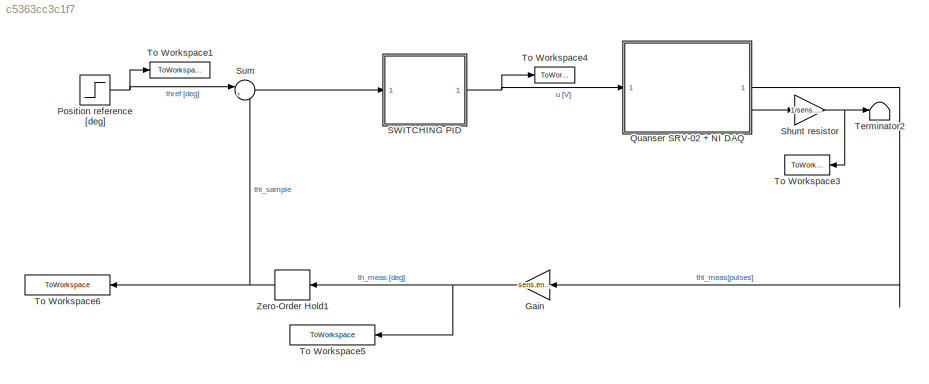
MODEL slx_c5363cc3c1f7
KIND model
CONFIG AbsTol = auto
CONFIG EnableMultiTasking = off
CONFIG FixedStep = auto
CONFIG MaxStep = auto
CONFIG MinStep = auto
CONFIG RelTol = 1e-3
CONFIG SampleTimeConstraint = Unconstrained
CONFIG SolverName = VariableStepAuto
CONFIG StartTime = 0.0
CONFIG StopTime = 10.0
BLOCK [Gain] Gain
  Gain = sens.enc.pulse2deg
  NameLocation = top
BLOCK [Step] Position reference [deg]
  After = simul.stepdeg
  SampleTime = challenge.Ts
  Time = 0
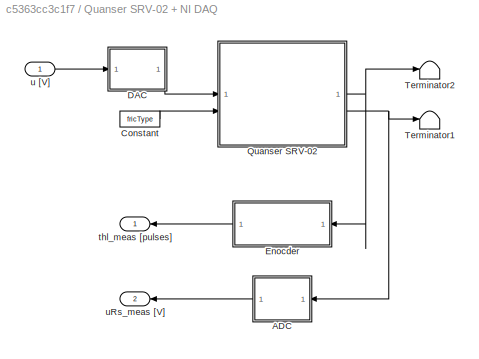
BLOCK [SubSystem] Quanser SRV-02 + NI DAQ
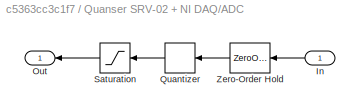
BLOCK [SubSystem] Quanser SRV-02 + NI DAQ/ADC
BLOCK [Inport] Quanser SRV-02 + NI DAQ/ADC/In
BLOCK [Outport] Quanser SRV-02 + NI DAQ/ADC/Out
BLOCK [Quantizer] Quanser SRV-02 + NI DAQ/ADC/Quantizer
  QuantizationInterval = daq.adc.q
BLOCK [Saturate] Quanser SRV-02 + NI DAQ/ADC/Saturation
  LowerLimit = -daq.adc.fs
  UpperLimit = daq.adc.fs
BLOCK [ZeroOrderHold] Quanser SRV-02 + NI DAQ/ADC/Zero-Order Hold
  SampleTime = Ts
BLOCK [Constant] Quanser SRV-02 + NI DAQ/Constant
  Value = fricType
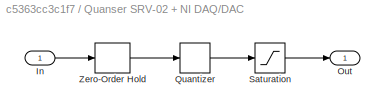
BLOCK [SubSystem] Quanser SRV-02 + NI DAQ/DAC
BLOCK [Inport] Quanser SRV-02 + NI DAQ/DAC/In
BLOCK [Outport] Quanser SRV-02 + NI DAQ/DAC/Out
BLOCK [Quantizer] Quanser SRV-02 + NI DAQ/DAC/Quantizer
  QuantizationInterval = daq.dac.q
BLOCK [Saturate] Quanser SRV-02 + NI DAQ/DAC/Saturation
  LowerLimit = -daq.dac.fs
  UpperLimit = daq.dac.fs
BLOCK [ZeroOrderHold] Quanser SRV-02 + NI DAQ/DAC/Zero-Order Hold
  SampleTime = Ts
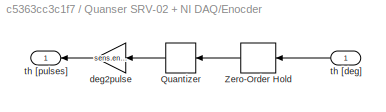
BLOCK [SubSystem] Quanser SRV-02 + NI DAQ/Enocder
BLOCK [Quantizer] Quanser SRV-02 + NI DAQ/Enocder/Quantizer
  QuantizationInterval = sens.enc.pulse2deg
BLOCK [ZeroOrderHold] Quanser SRV-02 + NI DAQ/Enocder/Zero-Order Hold
  SampleTime = Ts
BLOCK [Gain] Quanser SRV-02 + NI DAQ/Enocder/deg2pulse
  Gain = sens.enc.deg2pulse
BLOCK [Inport] Quanser SRV-02 + NI DAQ/Enocder/th [deg]
BLOCK [Outport] Quanser SRV-02 + NI DAQ/Enocder/th [pulses]
BLOCK [ModelReference] Quanser SRV-02 + NI DAQ/Quanser SRV-02
  CopyOfModelProtected = on
  ModelNameDialog = SRV02IL_maci64.slxp
  ModelReferenceVersion = 1.44
BLOCK [Terminator] Quanser SRV-02 + NI DAQ/Terminator1
BLOCK [Terminator] Quanser SRV-02 + NI DAQ/Terminator2
BLOCK [Outport] Quanser SRV-02 + NI DAQ/thl_meas [pulses]
BLOCK [Inport] Quanser SRV-02 + NI DAQ/u [V]
BLOCK [Outport] Quanser SRV-02 + NI DAQ/uRs_meas [V]
  Port = 2
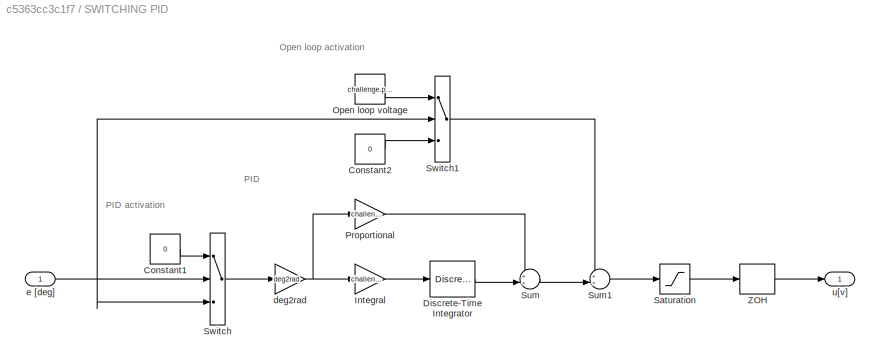
BLOCK [SubSystem] SWITCHING PID
BLOCK [Constant] SWITCHING PID/Constant1
  Value = 0
BLOCK [Constant] SWITCHING PID/Constant2
  Value = 0
BLOCK [DiscreteIntegrator] SWITCHING PID/Discrete-Time Integrator
  ICPrevOutput = DiscIntNeverNeededParam
  ICPrevScaledInput = DiscIntNeverNeededParam
  InitialConditionSetting = Auto
  IntegratorMethod = Integration: Trapezoidal
  SampleTime = challenge.Ts
BLOCK [Gain] SWITCHING PID/Integral
  Gain = challenge.pid.Ki
BLOCK [Constant] SWITCHING PID/Open loop voltage
  Value = challenge.pid.voltage
BLOCK [Gain] SWITCHING PID/Proportional
  Gain = challenge.pid.Kp
BLOCK [Saturate] SWITCHING PID/Saturation
  LowerLimit = -10
  UpperLimit = 10
BLOCK [Sum] SWITCHING PID/Sum
  Inputs = ++|
BLOCK [Sum] SWITCHING PID/Sum1
  Inputs = ++|
BLOCK [Switch] SWITCHING PID/Switch
  InputSameDT = off
  SaturateOnIntegerOverflow = off
  Threshold = simul.stepdeg*0.06
BLOCK [Switch] SWITCHING PID/Switch1
  InputSameDT = off
  SaturateOnIntegerOverflow = off
  Threshold = simul.stepdeg*0.05
BLOCK [ZeroOrderHold] SWITCHING PID/ZOH
  SampleTime = challenge.Ts
BLOCK [Gain] SWITCHING PID/deg2rad
  Gain = deg2rad
BLOCK [Inport] SWITCHING PID/e [deg]
BLOCK [Outport] SWITCHING PID/u[v]
BLOCK [Gain] Shunt resistor
  Gain = 1/sens.curr.Rs
BLOCK [Sum] Sum
  Inputs = |+-
BLOCK [Terminator] Terminator2
BLOCK [ToWorkspace] To Workspace1
  FixptAsFi = on
  MaxDataPoints = inf
  SampleTime = Ts
  SaveFormat = Structure With Time
  VariableName = thref
BLOCK [ToWorkspace] To Workspace3
  FixptAsFi = on
  MaxDataPoints = inf
  NameLocation = top
  SampleTime = Ts
  SaveFormat = Structure With Time
  VariableName = ia
BLOCK [ToWorkspace] To Workspace4
  FixptAsFi = on
  MaxDataPoints = inf
  SampleTime = Ts
  SaveFormat = Structure With Time
  VariableName = u
BLOCK [ToWorkspace] To Workspace5
  FixptAsFi = on
  MaxDataPoints = inf
  NameLocation = top
  SampleTime = Ts
  SaveFormat = Structure With Time
  VariableName = thl_meas
BLOCK [ToWorkspace] To Workspace6
  FixptAsFi = on
  MaxDataPoints = inf
  NameLocation = top
  SampleTime = Ts
  SaveFormat = Structure With Time
  VariableName = thl_sample
BLOCK [ZeroOrderHold] Zero-Order Hold1
  NameLocation = top
  SampleTime = challenge.Ts
ANNOTATION SWITCHING PID: Open loop activation
ANNOTATION SWITCHING PID: PID
ANNOTATION SWITCHING PID: PID activation
NET Gain:1 -> To Workspace5:1, Zero-Order Hold1:1
NET Position reference [deg]:1 -> Sum:1, To Workspace1:1
LINE Quanser SRV-02 + NI DAQ/ADC/In:1 -> Quanser SRV-02 + NI DAQ/ADC/Zero-Order Hold:1
LINE Quanser SRV-02 + NI DAQ/ADC/Quantizer:1 -> Quanser SRV-02 + NI DAQ/ADC/Saturation:1
LINE Quanser SRV-02 + NI DAQ/ADC/Saturation:1 -> Quanser SRV-02 + NI DAQ/ADC/Out:1
LINE Quanser SRV-02 + NI DAQ/ADC/Zero-Order Hold:1 -> Quanser SRV-02 + NI DAQ/ADC/Quantizer:1
LINE Quanser SRV-02 + NI DAQ/ADC:1 -> Quanser SRV-02 + NI DAQ/uRs_meas [V]:1
LINE Quanser SRV-02 + NI DAQ/Constant:1 -> Quanser SRV-02 + NI DAQ/Quanser SRV-02:2
LINE Quanser SRV-02 + NI DAQ/DAC/In:1 -> Quanser SRV-02 + NI DAQ/DAC/Zero-Order Hold:1
LINE Quanser SRV-02 + NI DAQ/DAC/Quantizer:1 -> Quanser SRV-02 + NI DAQ/DAC/Saturation:1
LINE Quanser SRV-02 + NI DAQ/DAC/Saturation:1 -> Quanser SRV-02 + NI DAQ/DAC/Out:1
LINE Quanser SRV-02 + NI DAQ/DAC/Zero-Order Hold:1 -> Quanser SRV-02 + NI DAQ/DAC/Quantizer:1
LINE Quanser SRV-02 + NI DAQ/DAC:1 -> Quanser SRV-02 + NI DAQ/Quanser SRV-02:1
LINE Quanser SRV-02 + NI DAQ/Enocder/Quantizer:1 -> Quanser SRV-02 + NI DAQ/Enocder/deg2pulse:1
LINE Quanser SRV-02 + NI DAQ/Enocder/Zero-Order Hold:1 -> Quanser SRV-02 + NI DAQ/Enocder/Quantizer:1
LINE Quanser SRV-02 + NI DAQ/Enocder/deg2pulse:1 -> Quanser SRV-02 + NI DAQ/Enocder/th [pulses]:1
LINE Quanser SRV-02 + NI DAQ/Enocder/th [deg]:1 -> Quanser SRV-02 + NI DAQ/Enocder/Zero-Order Hold:1
LINE Quanser SRV-02 + NI DAQ/Enocder:1 -> Quanser SRV-02 + NI DAQ/thl_meas [pulses]:1
NET Quanser SRV-02 + NI DAQ/Quanser SRV-02:1 -> Quanser SRV-02 + NI DAQ/Enocder:1, Quanser SRV-02 + NI DAQ/Terminator2:1
NET Quanser SRV-02 + NI DAQ/Quanser SRV-02:2 -> Quanser SRV-02 + NI DAQ/ADC:1, Quanser SRV-02 + NI DAQ/Terminator1:1
LINE Quanser SRV-02 + NI DAQ/u [V]:1 -> Quanser SRV-02 + NI DAQ/DAC:1
LINE Quanser SRV-02 + NI DAQ:1 -> Gain:1
LINE Quanser SRV-02 + NI DAQ:2 -> Shunt resistor:1
LINE SWITCHING PID/Constant1:1 -> SWITCHING PID/Switch:1
LINE SWITCHING PID/Constant2:1 -> SWITCHING PID/Switch1:3
LINE SWITCHING PID/Discrete-Time Integrator:1 -> SWITCHING PID/Sum:2
LINE SWITCHING PID/Integral:1 -> SWITCHING PID/Discrete-Time Integrator:1
LINE SWITCHING PID/Open loop voltage:1 -> SWITCHING PID/Switch1:1
LINE SWITCHING PID/Proportional:1 -> SWITCHING PID/Sum:1
LINE SWITCHING PID/Saturation:1 -> SWITCHING PID/ZOH:1
LINE SWITCHING PID/Sum1:1 -> SWITCHING PID/Saturation:1
LINE SWITCHING PID/Sum:1 -> SWITCHING PID/Sum1:2
LINE SWITCHING PID/Switch1:1 -> SWITCHING PID/Sum1:1
LINE SWITCHING PID/Switch:1 -> SWITCHING PID/deg2rad:1
LINE SWITCHING PID/ZOH:1 -> SWITCHING PID/u[v]:1
NET SWITCHING PID/deg2rad:1 -> SWITCHING PID/Integral:1, SWITCHING PID/Proportional:1
NET SWITCHING PID/e [deg]:1 -> SWITCHING PID/Switch1:2, SWITCHING PID/Switch:2, SWITCHING PID/Switch:3
NET SWITCHING PID:1 -> Quanser SRV-02 + NI DAQ:1, To Workspace4:1
NET Shunt resistor:1 -> Terminator2:1, To Workspace3:1
LINE Sum:1 -> SWITCHING PID:1
NET Zero-Order Hold1:1 -> Sum:2, To Workspace6:1
note: NET lines group one-source signal fan-out (src -> all destinations, sorted); 1:1 wires keep LINE
